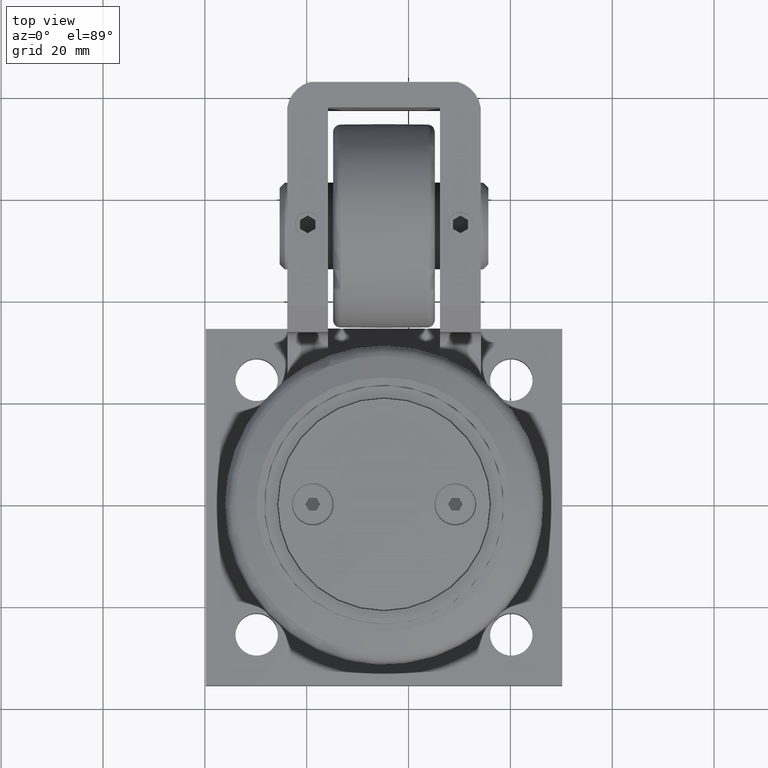
[diagram: clean part render]
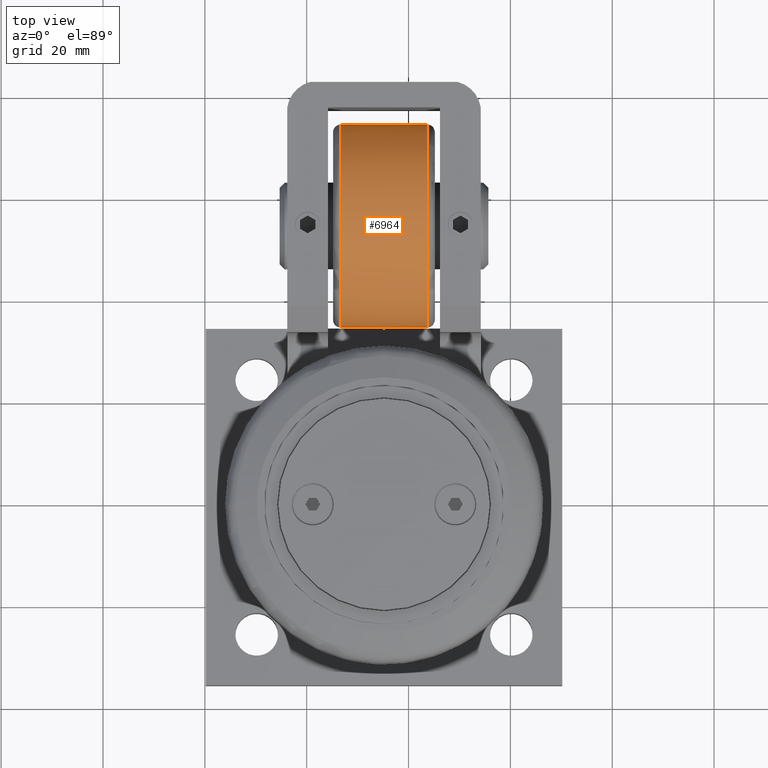
[diagram: same view with one face highlighted and labeled with its STEP entity id]
A machine part, top view. The second image highlights one B-rep face of the part: STEP entity #6964.
In plain terms, the highlighted face is a freeform B-spline surface patch.
Its self-contained STEP definition (entity closure, byte-faithful):
#18=(
BOUNDED_SURFACE()
B_SPLINE_SURFACE(2,2,((#12990,#12991,#12992,#12993,#12994,#12995,#12996,
#12997,#12998),(#12999,#13000,#13001,#13002,#13003,#13004,#13005,#13006,
#13007),(#13008,#13009,#13010,#13011,#13012,#13013,#13014,#13015,#13016)),
 .UNSPECIFIED.,.F.,.T.,.F.)
B_SPLINE_SURFACE_WITH_KNOTS((3,3),(3,2,2,2,3),(-0.0170519798157735,0.0170519798157732),
(-3.14159265358979,-1.5707963267949,0.,1.5707963267949,3.14159265358979),
 .UNSPECIFIED.)
GEOMETRIC_REPRESENTATION_ITEM()
RATIONAL_B_SPLINE_SURFACE(((1.,0.707106781186548,1.,0.707106781186548,1.,
0.707106781186548,1.,0.707106781186548,1.),(0.999854618514947,0.707003980952608,
0.999854618514947,0.707003980952608,0.999854618514947,0.707003980952608,
0.999854618514947,0.707003980952608,0.999854618514947),(1.,0.707106781186548,
1.,0.707106781186548,1.,0.707106781186548,1.,0.707106781186548,1.)))
REPRESENTATION_ITEM('')
SURFACE()
);
#691=FACE_OUTER_BOUND('',#1101,.T.);
#1101=EDGE_LOOP('',(#6397,#6398,#6399,#6400,#6401,#6402));
#1816=CIRCLE('',#8046,19.9273092574736);
#1817=CIRCLE('',#8047,19.9273092574736);
#1819=CIRCLE('',#8049,500.);
#1820=CIRCLE('',#8050,19.9273092574736);
#1821=CIRCLE('',#8051,19.9273092574736);
#3149=VERTEX_POINT('',#12984);
#3150=VERTEX_POINT('',#12986);
#3151=VERTEX_POINT('',#13017);
#3152=VERTEX_POINT('',#13019);
#4238=EDGE_CURVE('',#3149,#3150,#1816,.T.);
#4239=EDGE_CURVE('',#3150,#3149,#1817,.T.);
#4241=EDGE_CURVE('',#3149,#3151,#1819,.T.);
#4242=EDGE_CURVE('',#3152,#3151,#1820,.T.);
#4243=EDGE_CURVE('',#3151,#3152,#1821,.T.);
#6397=ORIENTED_EDGE('',*,*,#4239,.F.);
#6398=ORIENTED_EDGE('',*,*,#4238,.F.);
#6399=ORIENTED_EDGE('',*,*,#4241,.T.);
#6400=ORIENTED_EDGE('',*,*,#4242,.F.);
#6401=ORIENTED_EDGE('',*,*,#4243,.F.);
#6402=ORIENTED_EDGE('',*,*,#4241,.F.);
#6964=ADVANCED_FACE('',(#691),#18,.F.);
#8046=AXIS2_PLACEMENT_3D('',#12987,#10519,#10520);
#8047=AXIS2_PLACEMENT_3D('',#12988,#10521,#10522);
#8049=AXIS2_PLACEMENT_3D('',#13018,#10525,#10526);
#8050=AXIS2_PLACEMENT_3D('',#13020,#10527,#10528);
#8051=AXIS2_PLACEMENT_3D('',#13021,#10529,#10530);
#10519=DIRECTION('center_axis',(-1.,-2.22044604925031E-16,2.22044604925031E-16));
#10520=DIRECTION('ref_axis',(-2.22044604925031E-16,6.12323399573679E-17,
-1.));
#10521=DIRECTION('center_axis',(-1.,-2.22044604925031E-16,2.22044604925031E-16));
#10522=DIRECTION('ref_axis',(-2.22044604925031E-16,6.12323399573679E-17,
-1.));
#10525=DIRECTION('center_axis',(2.22044604925031E-16,-1.,2.22044604925031E-16));
#10526=DIRECTION('ref_axis',(-2.22044604925031E-16,-2.22044604925031E-16,
-1.));
#10527=DIRECTION('center_axis',(1.,2.22044604925031E-16,-2.22044604925031E-16));
#10528=DIRECTION('ref_axis',(-2.22044604925031E-16,6.12323399573679E-17,
-1.));
#10529=DIRECTION('center_axis',(1.,2.22044604925031E-16,-2.22044604925031E-16));
#10530=DIRECTION('ref_axis',(-2.22044604925031E-16,6.12323399573679E-17,
-1.));
#12984=CARTESIAN_POINT('',(-13.3453262202626,34.5266457154739,-17.4273092574736));
#12986=CARTESIAN_POINT('',(-13.3453262202625,34.5266457154739,22.4273092574736));
#12987=CARTESIAN_POINT('Origin',(-13.3453262202625,34.5266457154739,2.49999999999999));
#12988=CARTESIAN_POINT('Origin',(-13.3453262202625,34.5266457154739,2.49999999999999));
#12990=CARTESIAN_POINT('Ctrl Pts',(3.70582724011861,34.5266457154739,-17.4273092574736));
#12991=CARTESIAN_POINT('Ctrl Pts',(3.70582724011862,14.5993364580003,-17.4273092574736));
#12992=CARTESIAN_POINT('Ctrl Pts',(3.70582724011862,14.5993364580003,2.49999999999999));
#12993=CARTESIAN_POINT('Ctrl Pts',(3.70582724011863,14.5993364580003,22.4273092574736));
#12994=CARTESIAN_POINT('Ctrl Pts',(3.70582724011862,34.5266457154739,22.4273092574736));
#12995=CARTESIAN_POINT('Ctrl Pts',(3.70582724011862,54.4539549729475,22.4273092574736));
#12996=CARTESIAN_POINT('Ctrl Pts',(3.70582724011861,54.4539549729475,2.49999999999998));
#12997=CARTESIAN_POINT('Ctrl Pts',(3.70582724011861,54.4539549729475,-17.4273092574736));
#12998=CARTESIAN_POINT('Ctrl Pts',(3.70582724011861,34.5266457154739,-17.4273092574736));
#12999=CARTESIAN_POINT('Ctrl Pts',(-4.81974949007195,34.5266457154739,-17.5727013119511));
#13000=CARTESIAN_POINT('Ctrl Pts',(-4.81974949007195,14.4539444035228,-17.5727013119511));
#13001=CARTESIAN_POINT('Ctrl Pts',(-4.81974949007194,14.4539444035228,2.5));
#13002=CARTESIAN_POINT('Ctrl Pts',(-4.81974949007194,14.4539444035228,22.5727013119511));
#13003=CARTESIAN_POINT('Ctrl Pts',(-4.81974949007194,34.5266457154739,22.5727013119511));
#13004=CARTESIAN_POINT('Ctrl Pts',(-4.81974949007195,54.599347027425,22.5727013119511));
#13005=CARTESIAN_POINT('Ctrl Pts',(-4.81974949007195,54.599347027425,2.49999999999998));
#13006=CARTESIAN_POINT('Ctrl Pts',(-4.81974949007196,54.599347027425,-17.5727013119511));
#13007=CARTESIAN_POINT('Ctrl Pts',(-4.81974949007195,34.5266457154739,-17.5727013119511));
#13008=CARTESIAN_POINT('Ctrl Pts',(-13.3453262202625,34.5266457154739,-17.4273092574736));
#13009=CARTESIAN_POINT('Ctrl Pts',(-13.3453262202625,14.5993364580003,-17.4273092574736));
#13010=CARTESIAN_POINT('Ctrl Pts',(-13.3453262202625,14.5993364580003,2.5));
#13011=CARTESIAN_POINT('Ctrl Pts',(-13.3453262202625,14.5993364580003,22.4273092574736));
#13012=CARTESIAN_POINT('Ctrl Pts',(-13.3453262202625,34.5266457154739,22.4273092574736));
#13013=CARTESIAN_POINT('Ctrl Pts',(-13.3453262202625,54.4539549729475,22.4273092574736));
#13014=CARTESIAN_POINT('Ctrl Pts',(-13.3453262202625,54.4539549729475,2.49999999999999));
#13015=CARTESIAN_POINT('Ctrl Pts',(-13.3453262202625,54.4539549729475,-17.4273092574736));
#13016=CARTESIAN_POINT('Ctrl Pts',(-13.3453262202625,34.5266457154739,-17.4273092574736));
#13017=CARTESIAN_POINT('',(3.70582724011859,34.5266457154739,-17.4273092574736));
#13018=CARTESIAN_POINT('Origin',(-4.81974949007193,34.526645715474,482.5));
#13019=CARTESIAN_POINT('',(3.7058272401186,34.5266457154739,22.4273092574736));
#13020=CARTESIAN_POINT('Origin',(3.7058272401186,34.5266457154739,2.49999999999999));
#13021=CARTESIAN_POINT('Origin',(3.7058272401186,34.5266457154739,2.49999999999999));